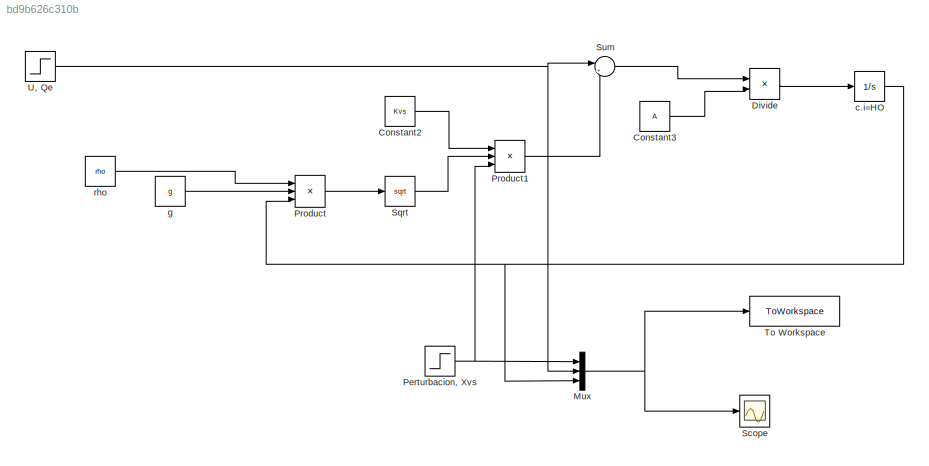
MODEL slx_bd9b626c310b
KIND model
CONFIG AbsTol = auto
CONFIG EnableMultiTasking = off
CONFIG FixedStep = auto
CONFIG MaxStep = auto
CONFIG MinStep = auto
CONFIG RelTol = 1e-3
CONFIG SampleTimeConstraint = Unconstrained
CONFIG SolverName = VariableStepAuto
CONFIG StartTime = 0.0
CONFIG StopTime = 10000.0
BLOCK [Constant] Constant2
  Value = Kvs
BLOCK [Constant] Constant3
  Value = A
BLOCK [Product] Divide
  Inputs = */
  Ports = [2, 1]
BLOCK [Mux] Mux
  DisplayOption = bar
  Inputs = 3
  Ports = [3, 1]
BLOCK [Step] Perturbacion, Xvs
  Before = 1
  SampleTime = 0
BLOCK [Product] Product
  Inputs = 3
  Ports = [3, 1]
BLOCK [Product] Product1
  Inputs = 3
  Ports = [3, 1]
BLOCK [Scope] Scope
  Floating = off
  NumInputPorts = 1
  Ports = [1]
  ScopeSpecificationString = Simulink.scopes.TimeScopeBlockCfg('CurrentConfiguration', extmgr.ConfigurationSet(extmgr.Configuration('Core','General UI',true),extmgr.Configuration('Core','Source UI',true),extmgr.Configuration('Sources','WiredSimulink',true,'SampleTime','1'),extmgr.Configuration('Visuals','Time Domain',true,'SerializedDisplays',{struct('MinYLimReal','-16.14965','MaxYLimReal','145.34688','YLabelReal','','MinYLim...<+1469ch>
BLOCK [Sqrt] Sqrt
BLOCK [Sum] Sum
  Inputs = |+-
  Ports = [2, 1]
BLOCK [ToWorkspace] To Workspace
  FixptAsFi = on
  MaxDataPoints = inf
  Ports = [1]
  SampleTime = -1
  SaveFormat = Timeseries
  VariableName = y
BLOCK [Step] U, Qe
  Before = 1
  SampleTime = 0
  Time = 2
BLOCK [Integrator] c.i=HO
  Ports = [1, 1]
BLOCK [Constant] g
  Value = g
BLOCK [Constant] rho
  Value = rho
LINE Constant2:1 -> Product1:1
LINE Constant3:1 -> Divide:2
LINE Divide:1 -> c.i=HO:1
NET Mux:1 -> Scope:1, To Workspace:1
NET Perturbacion, Xvs:1 -> Mux:1, Product1:3
LINE Product1:1 -> Sum:2
LINE Product:1 -> Sqrt:1
LINE Sqrt:1 -> Product1:2
LINE Sum:1 -> Divide:1
NET U, Qe:1 -> Mux:2, Sum:1
NET c.i=HO:1 -> Mux:3, Product:3
LINE g:1 -> Product:2
LINE rho:1 -> Product:1
note: NET lines group one-source signal fan-out (src -> all destinations, sorted); 1:1 wires keep LINE
